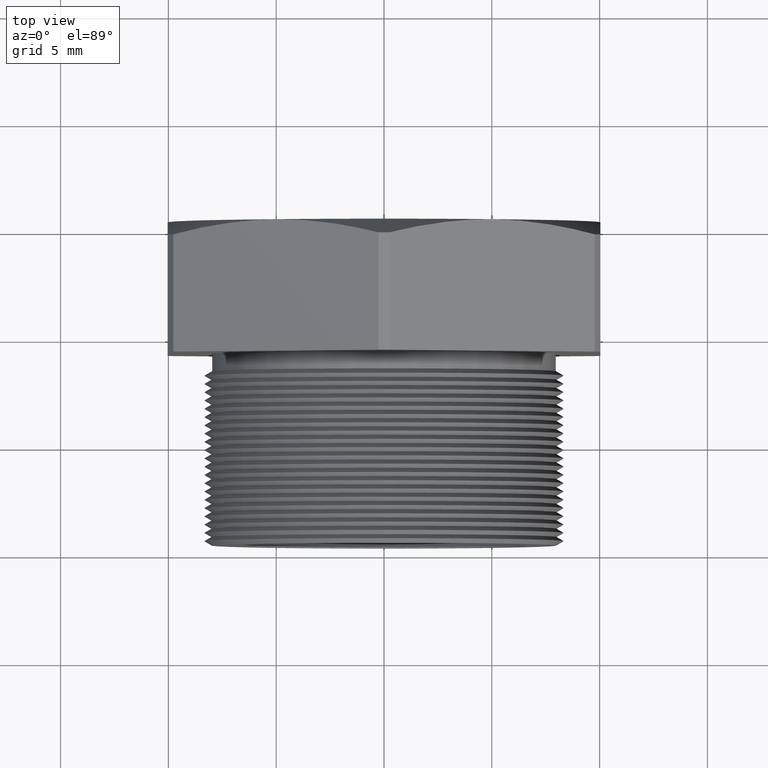
[diagram: clean part render]
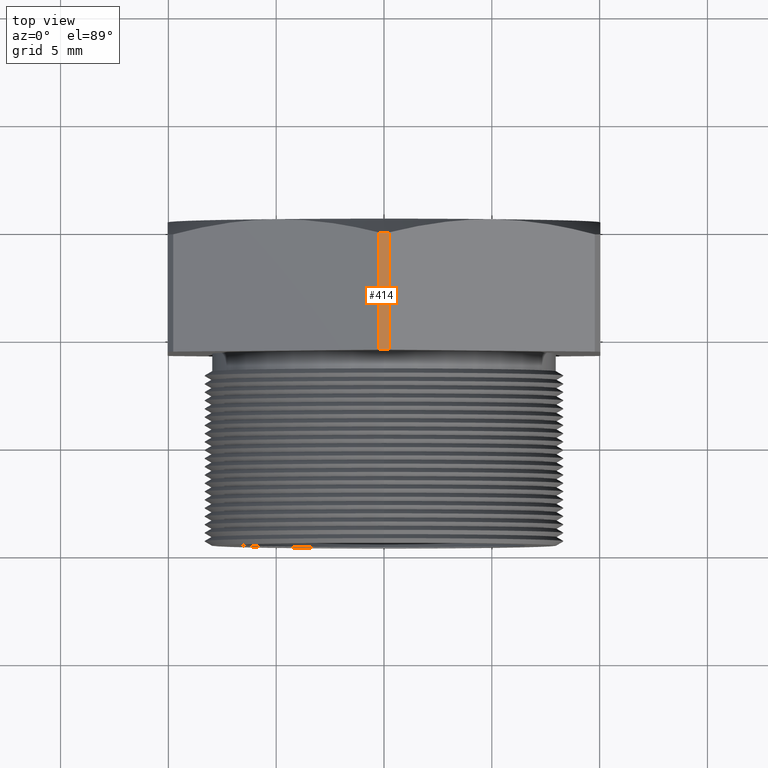
[diagram: same view with one face highlighted and labeled with its STEP entity id]
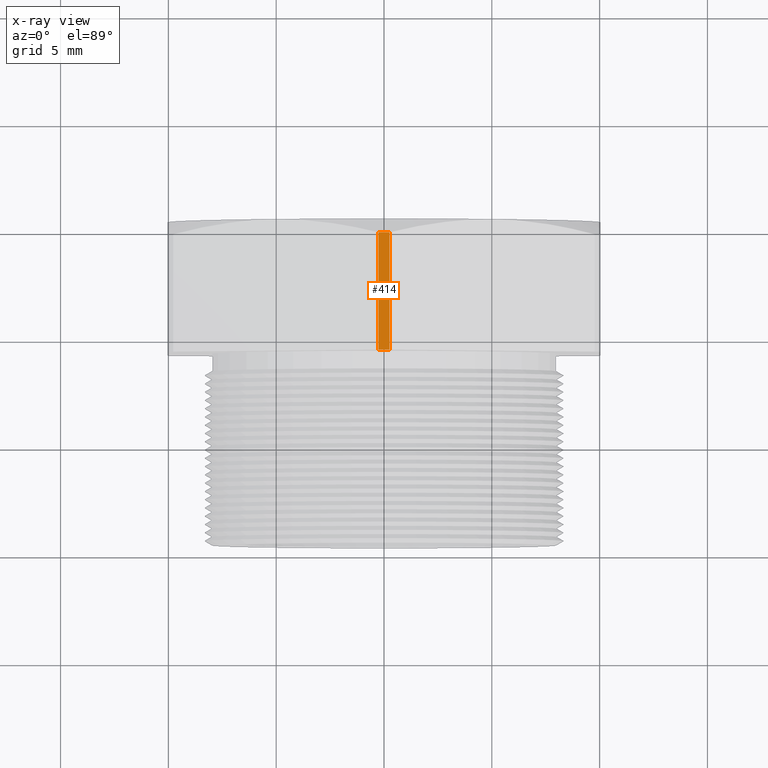
[diagram: x-ray of the same camera — body ghosted, the highlighted face saturated]
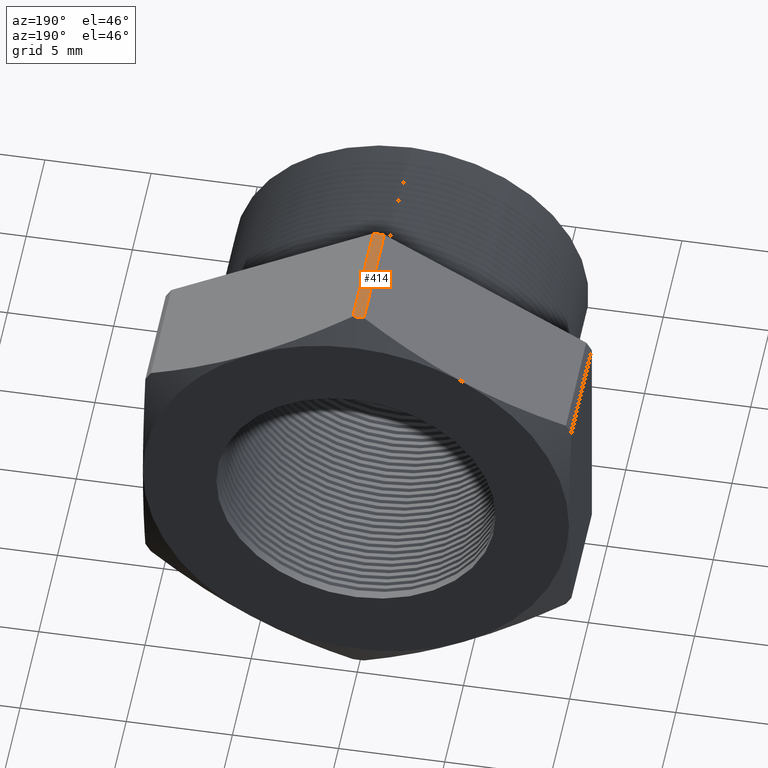
[diagram: same view with one face highlighted and labeled with its STEP entity id]
A machine part, top view. The second image highlights one B-rep face of the part: STEP entity #414.
The next image is the same camera in x-ray: the body ghosted, the highlighted face saturated — about 0% of this face is hidden behind the body in this view.
A second angle (auxiliary view) of the same face is appended — the face is thin or edge-on in the first view.
In plain terms, the highlighted cylindrical surface (partial cylindrical patch) has radius 11.4376 mm, axis along (-0, -1, -0).
Its self-contained STEP definition (entity closure, byte-faithful):
#399 = VERTEX_POINT ( 'NONE', #1989 ) ;
#400 = ORIENTED_EDGE ( 'NONE', *, *, #401, .F. ) ;
#401 = EDGE_CURVE ( 'NONE', #418, #399, #1988, .T. ) ;
#414 = ADVANCED_FACE ( 'NONE', ( #2022 ), #2021, .T. ) ;
#415 = EDGE_LOOP ( 'NONE', ( #416, #419, #420, #423, #400 ) ) ;
#416 = ORIENTED_EDGE ( 'NONE', *, *, #417, .T. ) ;
#417 = EDGE_CURVE ( 'NONE', #418, #5915, #2016, .T. ) ;
#418 = VERTEX_POINT ( 'NONE', #2012 ) ;
#419 = ORIENTED_EDGE ( 'NONE', *, *, #5670, .T. ) ;
#420 = ORIENTED_EDGE ( 'NONE', *, *, #421, .T. ) ;
#421 = EDGE_CURVE ( 'NONE', #5860, #422, #2011, .T. ) ;
#422 = VERTEX_POINT ( 'NONE', #2006 ) ;
#423 = ORIENTED_EDGE ( 'NONE', *, *, #424, .T. ) ;
#424 = EDGE_CURVE ( 'NONE', #422, #399, #2005, .T. ) ;
#1984 = DIRECTION ( 'NONE',  ( 0.0000000000000000000, 0.0000000000000000000, -1.000000000000000000 ) ) ;
#1985 = DIRECTION ( 'NONE',  ( -0.0000000000000000000, -1.000000000000000000, -0.0000000000000000000 ) ) ;
#1986 = CARTESIAN_POINT ( 'NONE',  ( 0.0000000000000000000, 0.1675548905829479500, 0.0000000000000000000 ) ) ;
#1987 = AXIS2_PLACEMENT_3D ( 'NONE', #1986, #1985, #1984 ) ;
#1988 = CIRCLE ( 'NONE', #1987, 0.4502999999999999800 ) ;
#1989 = CARTESIAN_POINT ( 'NONE',  ( -0.01026000026703719400, 0.1675548905829479500, 0.4501830987437449000 ) ) ;
#2002 = DIRECTION ( 'NONE',  ( -0.0000000000000000000, -1.000000000000000000, -0.0000000000000000000 ) ) ;
#2003 = VECTOR ( 'NONE', #2002, 39.37007874015748100 ) ;
#2004 = CARTESIAN_POINT ( 'NONE',  ( -0.01026000026703719400, 0.0000000000000000000, 0.4501830987437449000 ) ) ;
#2005 = LINE ( 'NONE', #2004, #2003 ) ;
#2006 = CARTESIAN_POINT ( 'NONE',  ( -0.01026000026703719400, 0.3817680770869766300, 0.4501830987437449000 ) ) ;
#2007 = DIRECTION ( 'NONE',  ( 0.0000000000000000000, 0.0000000000000000000, -1.000000000000000000 ) ) ;
#2008 = DIRECTION ( 'NONE',  ( 0.0000000000000000000, -1.000000000000000000, 0.0000000000000000000 ) ) ;
#2009 = CARTESIAN_POINT ( 'NONE',  ( 0.0000000000000000000, 0.3817680770869766300, 0.0000000000000000000 ) ) ;
#2010 = AXIS2_PLACEMENT_3D ( 'NONE', #2009, #2008, #2007 ) ;
#2011 = CIRCLE ( 'NONE', #2010, 0.4502999999999999800 ) ;
#2012 = CARTESIAN_POINT ( 'NONE',  ( 0.01026000026703746700, 0.1675548905829479500, 0.4501830987437449600 ) ) ;
#2013 = DIRECTION ( 'NONE',  ( 0.0000000000000000000, 1.000000000000000000, 0.0000000000000000000 ) ) ;
#2014 = VECTOR ( 'NONE', #2013, 39.37007874015748100 ) ;
#2015 = CARTESIAN_POINT ( 'NONE',  ( 0.01026000026703756900, 0.0000000000000000000, 0.4501830987437449000 ) ) ;
#2016 = LINE ( 'NONE', #2015, #2014 ) ;
#2017 = DIRECTION ( 'NONE',  ( 0.0000000000000000000, 0.0000000000000000000, -1.000000000000000000 ) ) ;
#2018 = DIRECTION ( 'NONE',  ( -0.0000000000000000000, -1.000000000000000000, -0.0000000000000000000 ) ) ;
#2019 = CARTESIAN_POINT ( 'NONE',  ( 0.0000000000000000000, 0.0000000000000000000, 0.0000000000000000000 ) ) ;
#2020 = AXIS2_PLACEMENT_3D ( 'NONE', #2019, #2018, #2017 ) ;
#2021 = CYLINDRICAL_SURFACE ( 'NONE', #2020, 0.4502999999999999800 ) ;
#2022 = FACE_OUTER_BOUND ( 'NONE', #415, .T. ) ;
#3703 = DIRECTION ( 'NONE',  ( 0.0000000000000000000, 0.0000000000000000000, -1.000000000000000000 ) ) ;
#3704 = DIRECTION ( 'NONE',  ( 0.0000000000000000000, -1.000000000000000000, 0.0000000000000000000 ) ) ;
#3705 = CARTESIAN_POINT ( 'NONE',  ( 0.0000000000000000000, 0.3817680770869766300, 0.0000000000000000000 ) ) ;
#3706 = AXIS2_PLACEMENT_3D ( 'NONE', #3705, #3704, #3703 ) ;
#3711 = CIRCLE ( 'NONE', #3706, 0.4502999999999999800 ) ;
#4044 = CARTESIAN_POINT ( 'NONE',  ( 0.0000000000000000000, 0.3817680770869766300, 0.4502999999999999800 ) ) ;
#4199 = CARTESIAN_POINT ( 'NONE',  ( 0.01026000026703751200, 0.3817680770869766900, 0.4501830987437447900 ) ) ;
#5670 = EDGE_CURVE ( 'NONE', #5915, #5860, #3711, .T. ) ;
#5860 = VERTEX_POINT ( 'NONE', #4044 ) ;
#5915 = VERTEX_POINT ( 'NONE', #4199 ) ;